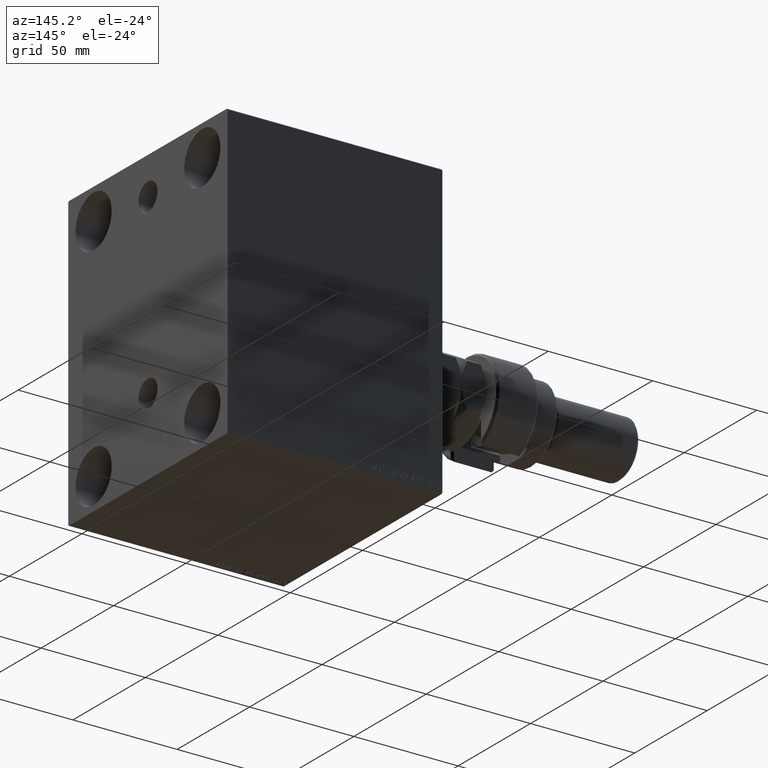
[diagram: clean part render]
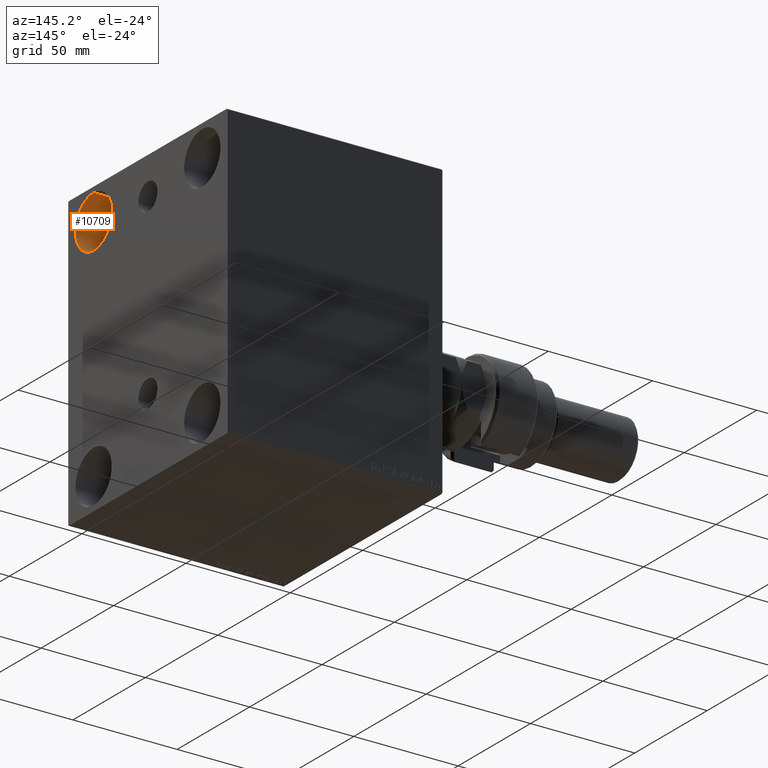
[diagram: same view with one face highlighted and labeled with its STEP entity id]
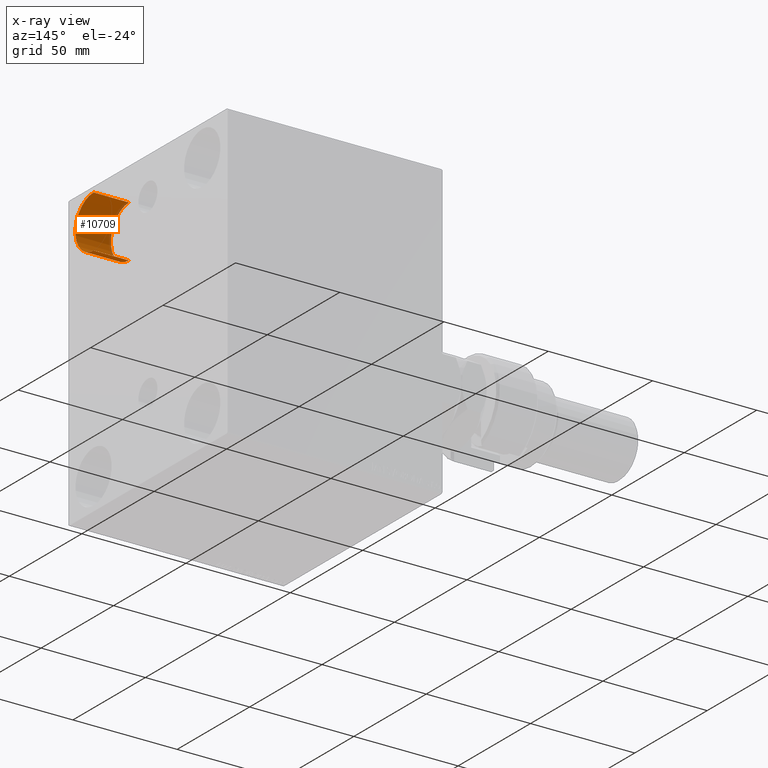
[diagram: x-ray of the same camera — body ghosted, the highlighted face saturated]
A machine part, auxiliary view. The second image highlights one B-rep face of the part: STEP entity #10709.
The next image is the same camera in x-ray: the body ghosted, the highlighted face saturated — about 6% of this face is hidden behind the body in this view.
In plain terms, the highlighted cylindrical surface (edge-blend (fillet) strip) has radius 12.5 mm, axis along (1, 0, 0).
Its self-contained STEP definition (entity closure, byte-faithful):
#3317 = FACE_OUTER_BOUND ( 'NONE', #17024, .T. ) ;
#3398 = VERTEX_POINT ( 'NONE', #20951 ) ;
#4006 = AXIS2_PLACEMENT_3D ( 'NONE', #9039, #22973, #33585 ) ;
#4185 = CYLINDRICAL_SURFACE ( 'NONE', #33886, 12.49999999999999645 ) ;
#7773 = EDGE_CURVE ( 'NONE', #10928, #3398, #30286, .T. ) ;
#8250 = DIRECTION ( 'NONE',  ( 1.000000000000000000, -0.000000000000000000, -0.000000000000000000 ) ) ;
#8926 = VECTOR ( 'NONE', #19684, 1000.000000000000000 ) ;
#9039 = CARTESIAN_POINT ( 'NONE',  ( 86.00000000000000000, -37.50000000000000711, 55.00000000000000711 ) ) ;
#9761 = VERTEX_POINT ( 'NONE', #37740 ) ;
#10709 = ADVANCED_FACE ( 'NONE', ( #3317 ), #4185, .F. ) ;
#10928 = VERTEX_POINT ( 'NONE', #43081 ) ;
#12017 = CARTESIAN_POINT ( 'NONE',  ( 86.00000000000000000, -37.50000000000000711, 67.50000000000000000 ) ) ;
#13803 = CIRCLE ( 'NONE', #4006, 12.49999999999999645 ) ;
#14172 = CARTESIAN_POINT ( 'NONE',  ( 86.00000000000000000, -37.50000000000000711, 55.00000000000000711 ) ) ;
#15774 = EDGE_CURVE ( 'NONE', #3398, #9761, #27155, .T. ) ;
#16178 = ORIENTED_EDGE ( 'NONE', *, *, #45079, .T. ) ;
#17024 = EDGE_LOOP ( 'NONE', ( #37530, #16178, #38099, #38577 ) ) ;
#19457 = VERTEX_POINT ( 'NONE', #25162 ) ;
#19684 = DIRECTION ( 'NONE',  ( 1.000000000000000000, -0.000000000000000000, -0.000000000000000000 ) ) ;
#20951 = CARTESIAN_POINT ( 'NONE',  ( 103.0000000000000000, -37.50000000000000711, 42.50000000000000711 ) ) ;
#21254 = DIRECTION ( 'NONE',  ( 1.000000000000000000, -0.000000000000000000, -0.000000000000000000 ) ) ;
#22973 = DIRECTION ( 'NONE',  ( -1.000000000000000000, -0.000000000000000000, -0.000000000000000000 ) ) ;
#25162 = CARTESIAN_POINT ( 'NONE',  ( 86.00000000000000000, -37.50000000000000711, 67.50000000000000000 ) ) ;
#27155 = CIRCLE ( 'NONE', #27924, 12.49999999999999645 ) ;
#27311 = DIRECTION ( 'NONE',  ( -1.000000000000000000, -0.000000000000000000, -0.000000000000000000 ) ) ;
#27924 = AXIS2_PLACEMENT_3D ( 'NONE', #31532, #27311, #41937 ) ;
#29658 = DIRECTION ( 'NONE',  ( 0.000000000000000000, 0.000000000000000000, -1.000000000000000000 ) ) ;
#30286 = LINE ( 'NONE', #37627, #8926 ) ;
#31532 = CARTESIAN_POINT ( 'NONE',  ( 103.0000000000000000, -37.50000000000000711, 55.00000000000000711 ) ) ;
#33585 = DIRECTION ( 'NONE',  ( 0.000000000000000000, 0.000000000000000000, 1.000000000000000000 ) ) ;
#33886 = AXIS2_PLACEMENT_3D ( 'NONE', #14172, #21254, #29658 ) ;
#35921 = VECTOR ( 'NONE', #8250, 1000.000000000000000 ) ;
#37035 = EDGE_CURVE ( 'NONE', #10928, #19457, #13803, .T. ) ;
#37530 = ORIENTED_EDGE ( 'NONE', *, *, #37035, .T. ) ;
#37627 = CARTESIAN_POINT ( 'NONE',  ( 86.00000000000000000, -37.50000000000000711, 42.50000000000000711 ) ) ;
#37740 = CARTESIAN_POINT ( 'NONE',  ( 103.0000000000000000, -37.50000000000000711, 67.50000000000000000 ) ) ;
#38099 = ORIENTED_EDGE ( 'NONE', *, *, #15774, .F. ) ;
#38577 = ORIENTED_EDGE ( 'NONE', *, *, #7773, .F. ) ;
#40587 = LINE ( 'NONE', #12017, #35921 ) ;
#41937 = DIRECTION ( 'NONE',  ( 0.000000000000000000, 0.000000000000000000, 1.000000000000000000 ) ) ;
#43081 = CARTESIAN_POINT ( 'NONE',  ( 86.00000000000000000, -37.50000000000000711, 42.50000000000000711 ) ) ;
#45079 = EDGE_CURVE ( 'NONE', #19457, #9761, #40587, .T. ) ;